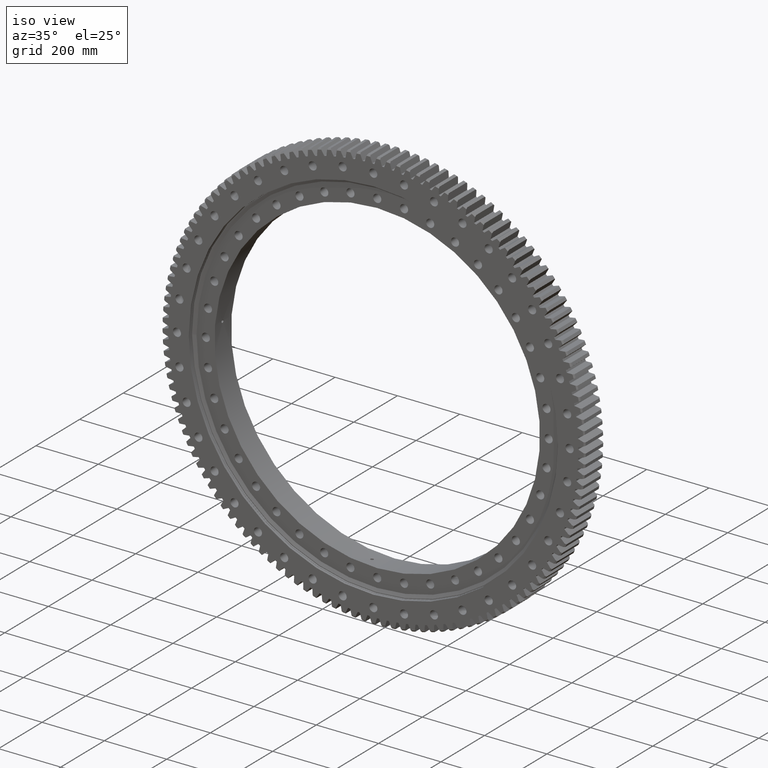
[diagram: clean part render]
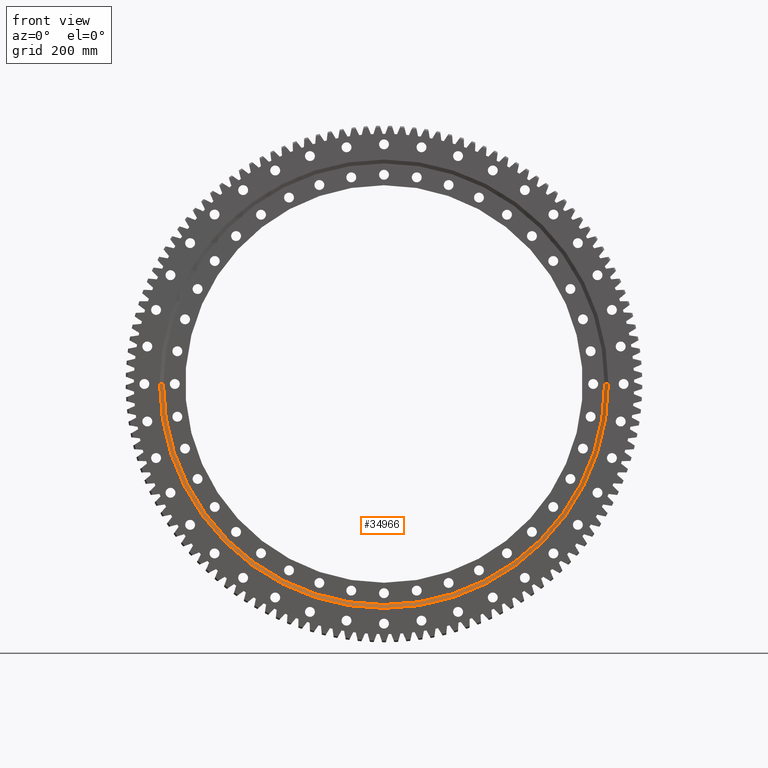
[diagram: tour spotlight — one face highlighted and labeled with its STEP entity id]
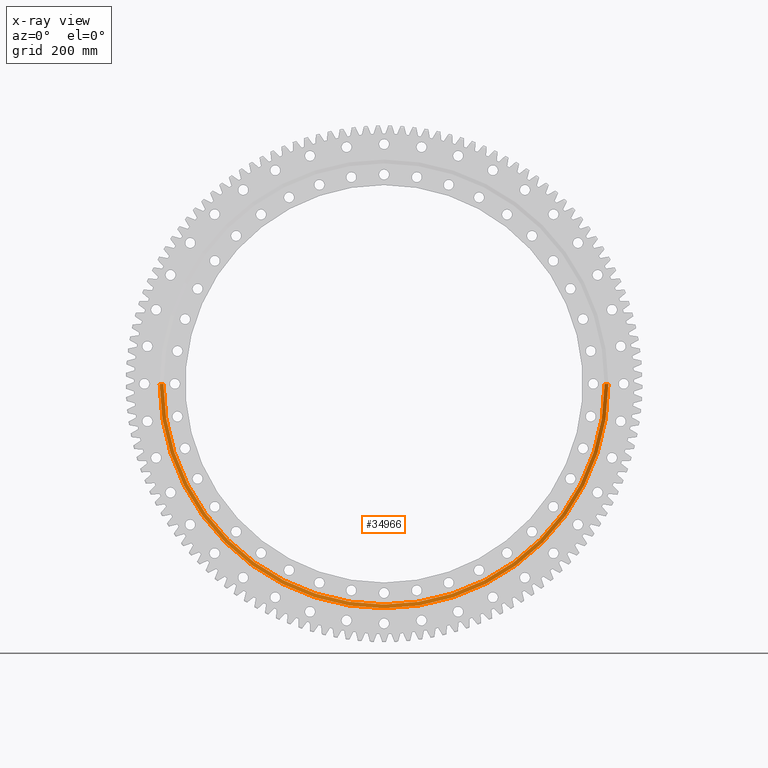
[diagram: x-ray of the same camera — body ghosted, this tour face saturated]
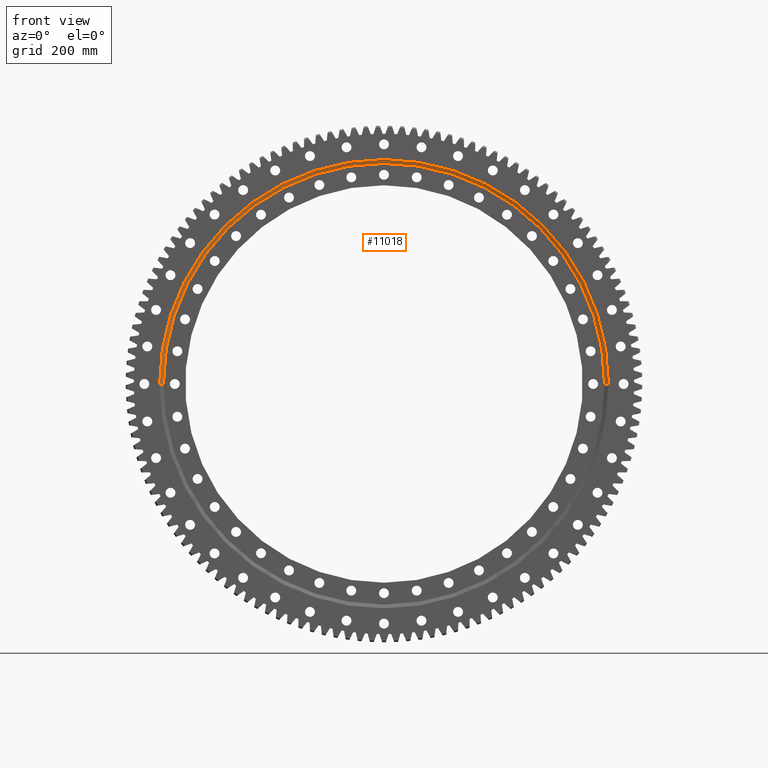
[diagram: tour spotlight — one face highlighted and labeled with its STEP entity id]
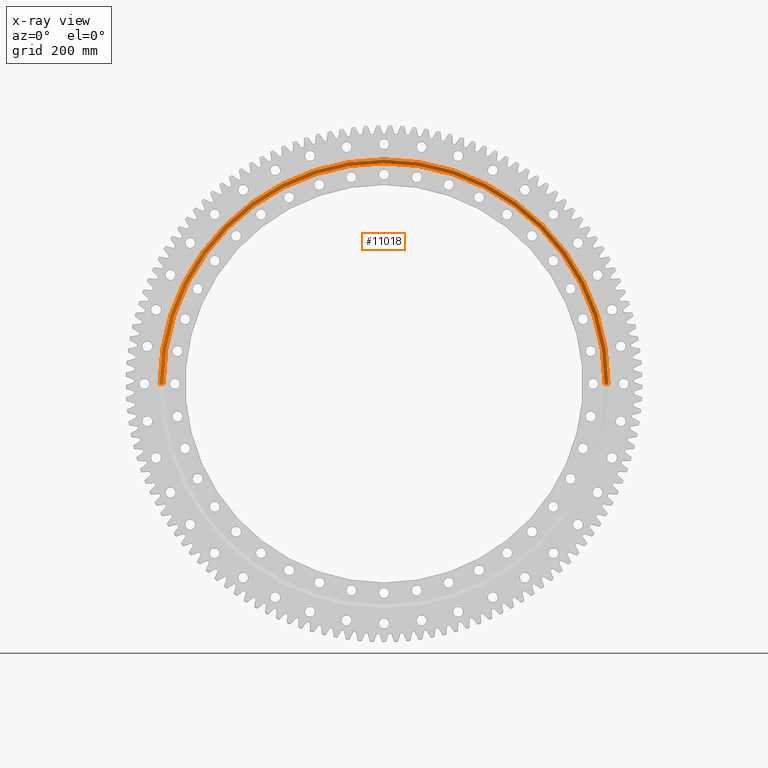
[diagram: x-ray of the same camera — body ghosted, this tour face saturated]
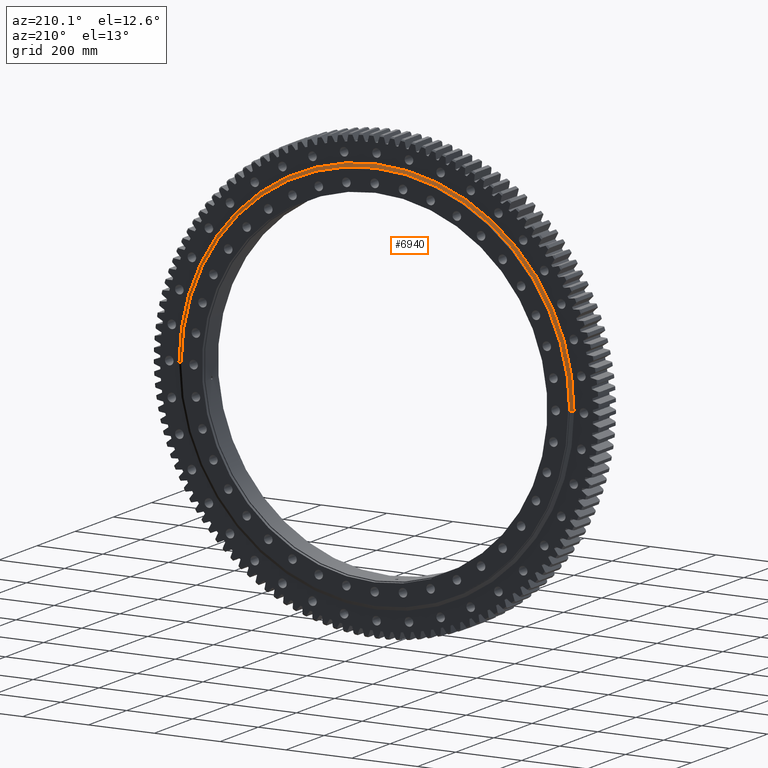
[diagram: tour spotlight — one face highlighted and labeled with its STEP entity id]
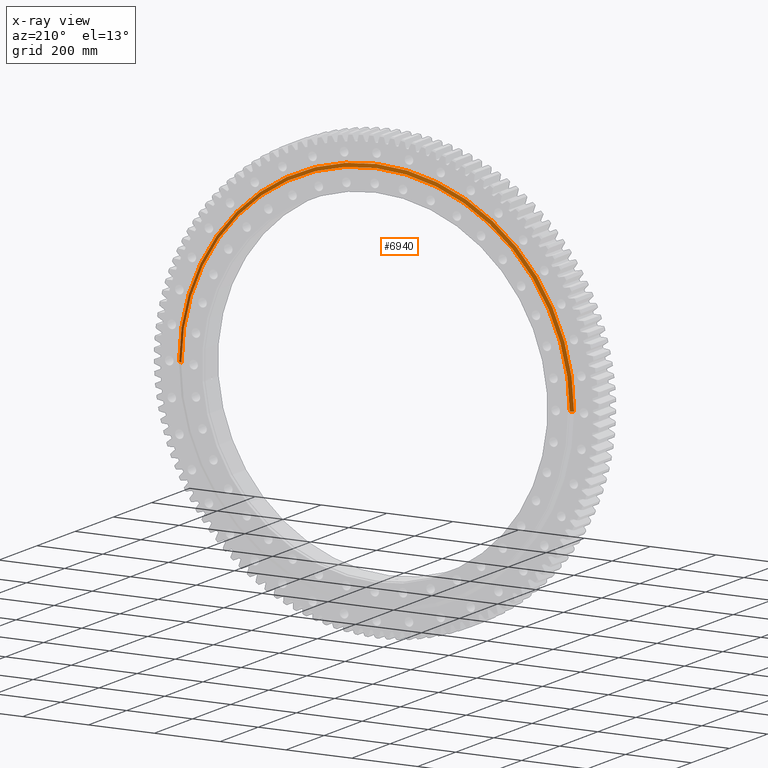
[diagram: x-ray of the same camera — body ghosted, this tour face saturated]
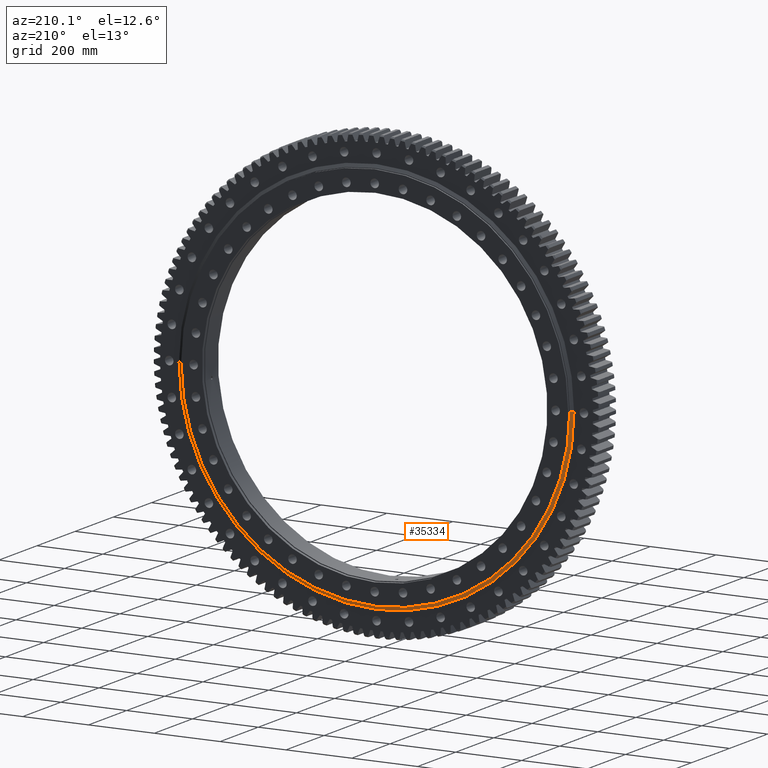
[diagram: tour spotlight — one face highlighted and labeled with its STEP entity id]
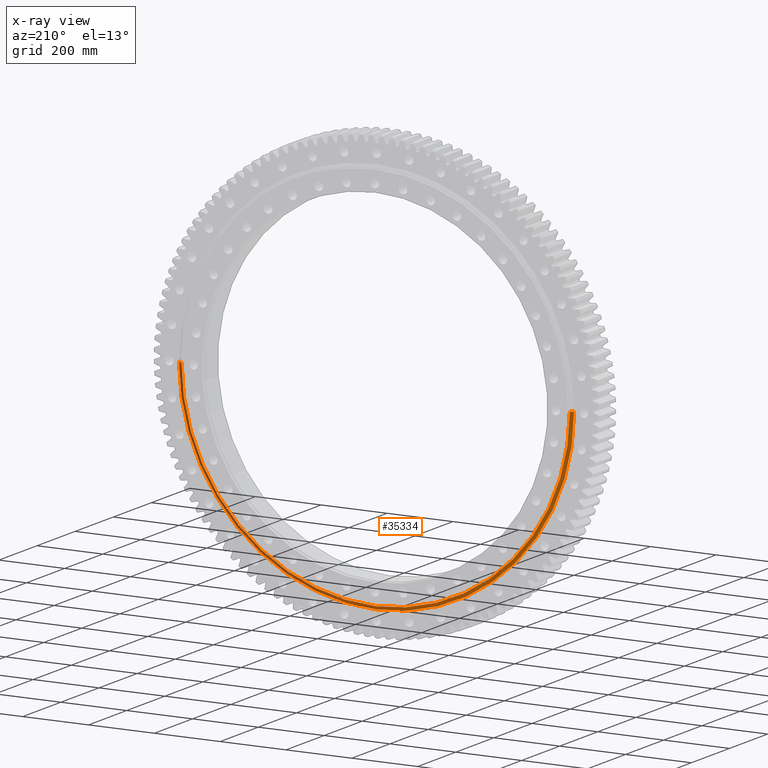
[diagram: x-ray of the same camera — body ghosted, this tour face saturated]
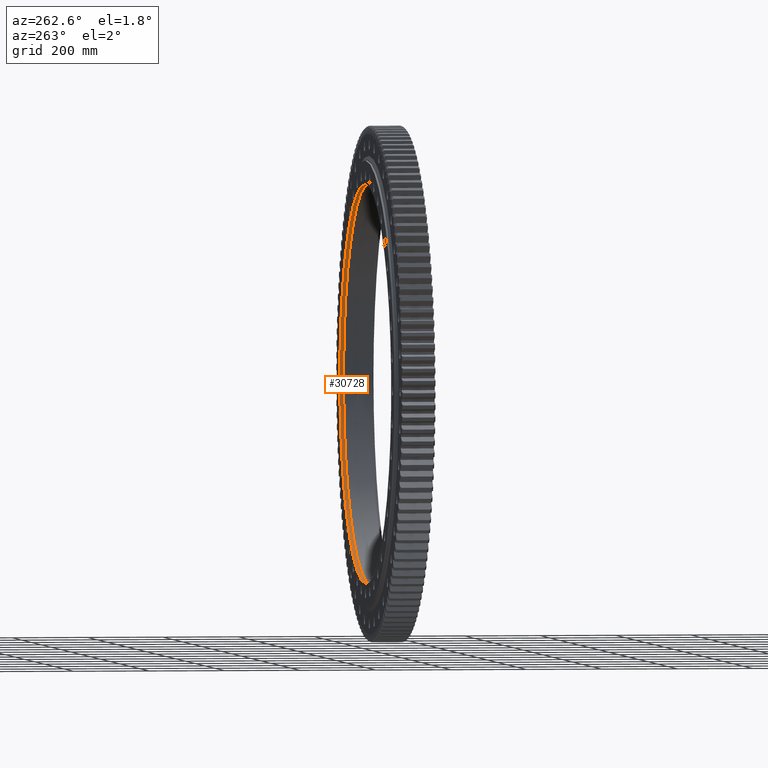
[diagram: tour spotlight — one face highlighted and labeled with its STEP entity id]
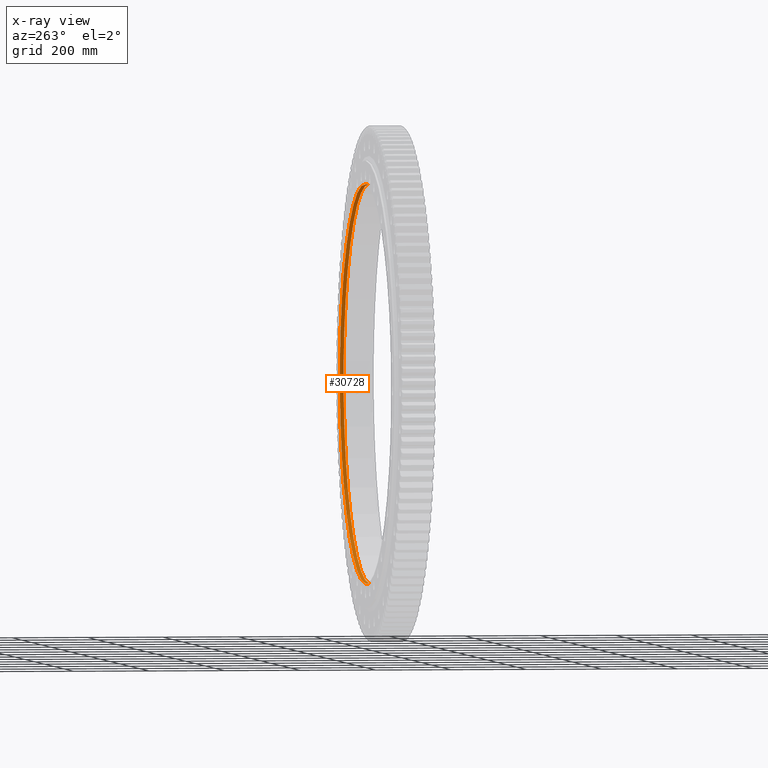
[diagram: x-ray of the same camera — body ghosted, this tour face saturated]
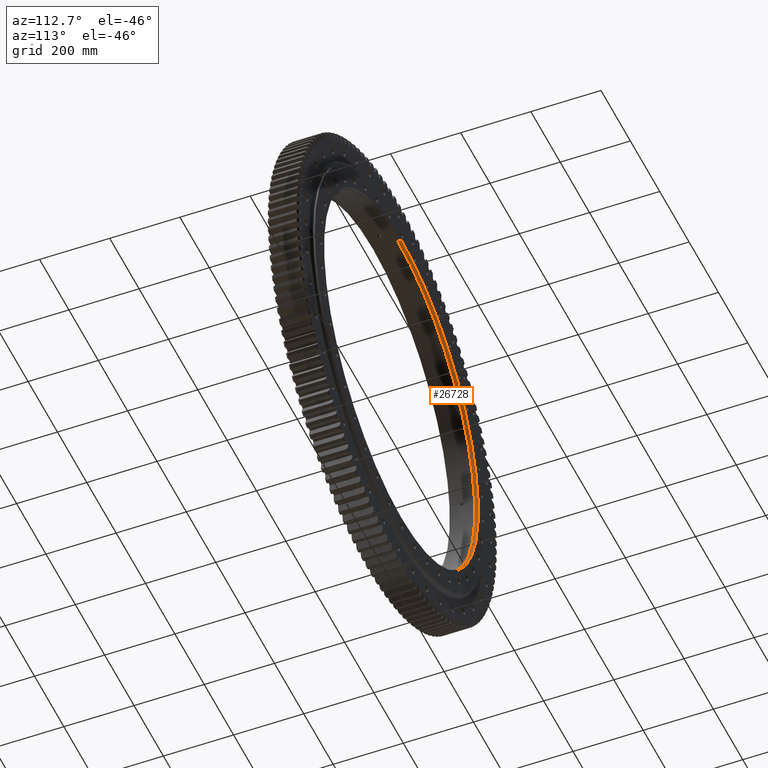
[diagram: tour spotlight — one face highlighted and labeled with its STEP entity id]
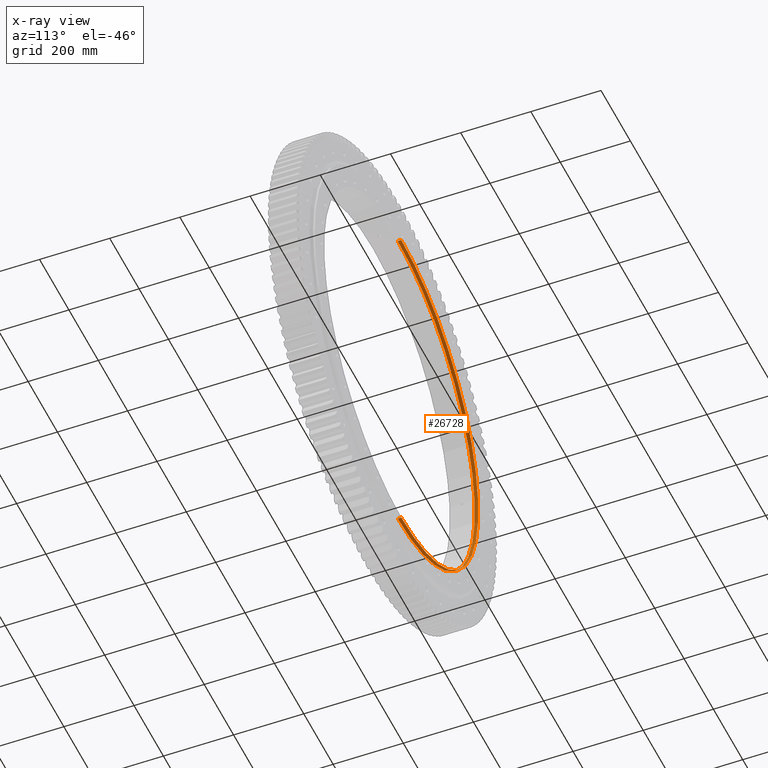
[diagram: x-ray of the same camera — body ghosted, this tour face saturated]
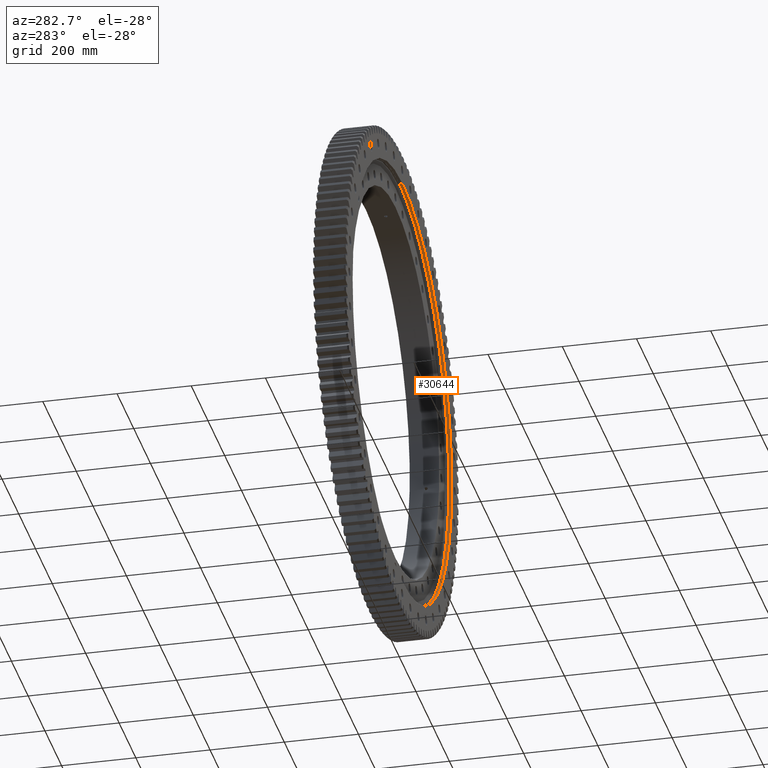
[diagram: tour spotlight — one face highlighted and labeled with its STEP entity id]
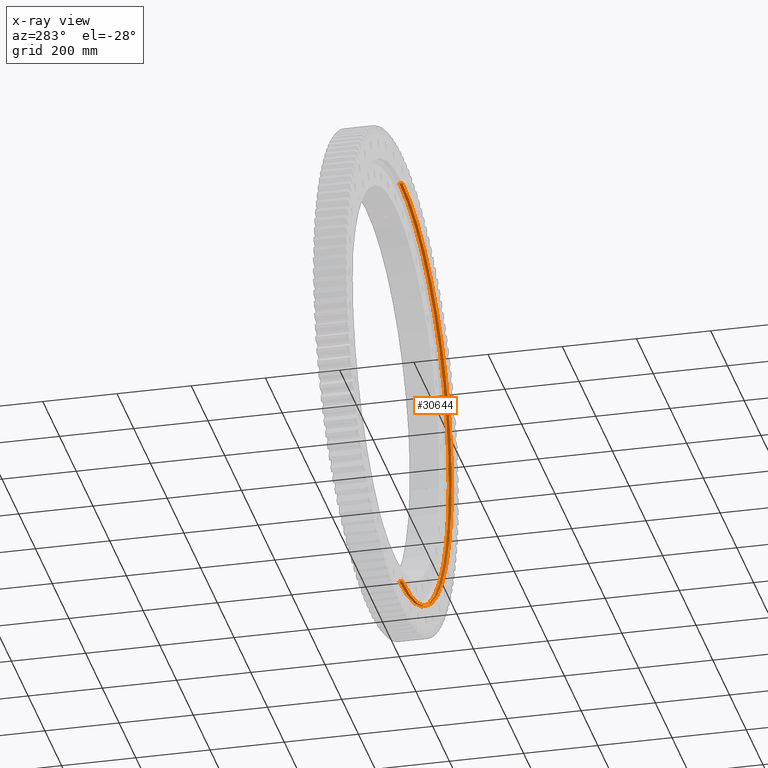
[diagram: x-ray of the same camera — body ghosted, this tour face saturated]
A machine part: a face-by-face anatomy tour. The part has 1028 B-rep faces; the first image is the clean iso view, then the 7 largest visible faces are spotlighted one at a time (largest first), each with its STEP entity span.

Face 1 — front view, entity #34966. An x-ray twin of the same camera follows (body ghosted, this face saturated) — the face is partly hidden behind the body. In plain terms, the highlighted conical surface has half-angle 63.206 deg.
Definition (entity closure, byte-faithful):
#382 = DIRECTION ( 'NONE',  ( 1.786923420260216300E-016, 1.000000000000000000, -0.0000000000000000000 ) ) ;
#995 = DIRECTION ( 'NONE',  ( 1.786923420260216300E-016, 1.000000000000000000, -0.0000000000000000000 ) ) ;
#1030 = DIRECTION ( 'NONE',  ( -1.786923420260216300E-016, -1.000000000000000000, 0.0000000000000000000 ) ) ;
#1370 = CARTESIAN_POINT ( 'NONE',  ( 589.9049999999998600, -40.05000000000010400, 0.0000000000000000000 ) ) ;
#2476 = CARTESIAN_POINT ( 'NONE',  ( -589.9049999999998600, -40.04999999999989800, 7.224252700510193200E-014 ) ) ;
#2570 = ORIENTED_EDGE ( 'NONE', *, *, #6712, .F. ) ;
#3944 = CARTESIAN_POINT ( 'NONE',  ( -1.279447959506678900E-014, -40.05000000000000400, 0.0000000000000000000 ) ) ;
#5396 = ORIENTED_EDGE ( 'NONE', *, *, #33571, .T. ) ;
#6712 = EDGE_CURVE ( 'NONE', #7780, #14472, #29790, .T. ) ;
#7126 = VECTOR ( 'NONE', #21952, 1000.000000000000100 ) ;
#7557 = CARTESIAN_POINT ( 'NONE',  ( 589.9049999999998600, -40.05000000000010400, 0.0000000000000000000 ) ) ;
#7567 = VECTOR ( 'NONE', #16344, 1000.000000000000100 ) ;
#7780 = VERTEX_POINT ( 'NONE', #21346 ) ;
#8118 = ORIENTED_EDGE ( 'NONE', *, *, #10343, .T. ) ;
#8285 = CIRCLE ( 'NONE', #36087, 589.9049999999998600 ) ;
#10343 = EDGE_CURVE ( 'NONE', #7780, #31615, #24017, .T. ) ;
#10402 = EDGE_CURVE ( 'NONE', #14472, #30770, #8285, .T. ) ;
#11810 = DIRECTION ( 'NONE',  ( -1.000000000000000000, 1.764409668651875200E-016, 0.0000000000000000000 ) ) ;
#14022 = CONICAL_SURFACE ( 'NONE', #34491, 589.9049999999998600, 1.103156723031676800 ) ;
#14472 = VERTEX_POINT ( 'NONE', #1370 ) ;
#14551 = LINE ( 'NONE', #2476, #7126 ) ;
#15775 = FACE_OUTER_BOUND ( 'NONE', #29776, .T. ) ;
#16344 = DIRECTION ( 'NONE',  ( 0.8926347946143770000, -0.4507805712802502300, 0.0000000000000000000 ) ) ;
#18631 = CARTESIAN_POINT ( 'NONE',  ( -1.279447959506678900E-014, -40.05000000000000400, 0.0000000000000000000 ) ) ;
#18753 = CARTESIAN_POINT ( 'NONE',  ( -1.189208326783540000E-014, -35.00000000000011400, 0.0000000000000000000 ) ) ;
#21346 = CARTESIAN_POINT ( 'NONE',  ( 579.9049999999998600, -35.00000000000022000, 0.0000000000000000000 ) ) ;
#21952 = DIRECTION ( 'NONE',  ( -0.8926347946143772200, -0.4507805712802499000, 1.093162344032052000E-016 ) ) ;
#23391 = DIRECTION ( 'NONE',  ( 1.000000000000000000, -1.764409668651875200E-016, 0.0000000000000000000 ) ) ;
#24017 = CIRCLE ( 'NONE', #24914, 579.9049999999998600 ) ;
#24914 = AXIS2_PLACEMENT_3D ( 'NONE', #18753, #995, #35171 ) ;
#24971 = ORIENTED_EDGE ( 'NONE', *, *, #10402, .F. ) ;
#25510 = CARTESIAN_POINT ( 'NONE',  ( -579.9049999999998600, -35.00000000000000700, 7.163020360552825600E-014 ) ) ;
#29776 = EDGE_LOOP ( 'NONE', ( #8118, #5396, #24971, #2570 ) ) ;
#29790 = LINE ( 'NONE', #7557, #7567 ) ;
#30770 = VERTEX_POINT ( 'NONE', #33379 ) ;
#31615 = VERTEX_POINT ( 'NONE', #25510 ) ;
#33379 = CARTESIAN_POINT ( 'NONE',  ( -589.9049999999998600, -40.04999999999989800, 7.224252700510193200E-014 ) ) ;
#33571 = EDGE_CURVE ( 'NONE', #31615, #30770, #14551, .T. ) ;
#34491 = AXIS2_PLACEMENT_3D ( 'NONE', #3944, #1030, #23391 ) ;
#34966 = ADVANCED_FACE ( 'NONE', ( #15775 ), #14022, .F. ) ;
#35171 = DIRECTION ( 'NONE',  ( -1.000000000000000000, 1.794835508550684100E-016, 0.0000000000000000000 ) ) ;
#36087 = AXIS2_PLACEMENT_3D ( 'NONE', #18631, #382, #11810 ) ;

Face 2 — front view, entity #11018. An x-ray twin of the same camera follows (body ghosted, this face saturated) — the face is partly hidden behind the body. In plain terms, the highlighted conical surface has half-angle 63.206 deg.
Definition (entity closure, byte-faithful):
#1370 = CARTESIAN_POINT ( 'NONE',  ( 589.9049999999998600, -40.05000000000010400, 0.0000000000000000000 ) ) ;
#1692 = ORIENTED_EDGE ( 'NONE', *, *, #19862, .T. ) ;
#2476 = CARTESIAN_POINT ( 'NONE',  ( -589.9049999999998600, -40.04999999999989800, 7.224252700510193200E-014 ) ) ;
#6712 = EDGE_CURVE ( 'NONE', #7780, #14472, #29790, .T. ) ;
#6962 = DIRECTION ( 'NONE',  ( 1.786923420260216300E-016, 1.000000000000000000, -0.0000000000000000000 ) ) ;
#7126 = VECTOR ( 'NONE', #21952, 1000.000000000000100 ) ;
#7557 = CARTESIAN_POINT ( 'NONE',  ( 589.9049999999998600, -40.05000000000010400, 0.0000000000000000000 ) ) ;
#7567 = VECTOR ( 'NONE', #16344, 1000.000000000000100 ) ;
#7780 = VERTEX_POINT ( 'NONE', #21346 ) ;
#8854 = CARTESIAN_POINT ( 'NONE',  ( -1.189208326783540000E-014, -35.00000000000011400, 0.0000000000000000000 ) ) ;
#9650 = AXIS2_PLACEMENT_3D ( 'NONE', #8854, #28343, #11687 ) ;
#10020 = ORIENTED_EDGE ( 'NONE', *, *, #6712, .T. ) ;
#11018 = ADVANCED_FACE ( 'NONE', ( #35270 ), #18723, .F. ) ;
#11687 = DIRECTION ( 'NONE',  ( -1.000000000000000000, 1.794835508550684100E-016, 0.0000000000000000000 ) ) ;
#12895 = ORIENTED_EDGE ( 'NONE', *, *, #33571, .F. ) ;
#14472 = VERTEX_POINT ( 'NONE', #1370 ) ;
#14502 = DIRECTION ( 'NONE',  ( -1.786923420260216300E-016, -1.000000000000000000, 0.0000000000000000000 ) ) ;
#14551 = LINE ( 'NONE', #2476, #7126 ) ;
#15375 = AXIS2_PLACEMENT_3D ( 'NONE', #17305, #14502, #31904 ) ;
#16344 = DIRECTION ( 'NONE',  ( 0.8926347946143770000, -0.4507805712802502300, 0.0000000000000000000 ) ) ;
#17305 = CARTESIAN_POINT ( 'NONE',  ( -1.279447959506678900E-014, -40.05000000000000400, 0.0000000000000000000 ) ) ;
#18723 = CONICAL_SURFACE ( 'NONE', #15375, 589.9049999999998600, 1.103156723031676800 ) ;
#19862 = EDGE_CURVE ( 'NONE', #31615, #7780, #28851, .T. ) ;
#21346 = CARTESIAN_POINT ( 'NONE',  ( 579.9049999999998600, -35.00000000000022000, 0.0000000000000000000 ) ) ;
#21952 = DIRECTION ( 'NONE',  ( -0.8926347946143772200, -0.4507805712802499000, 1.093162344032052000E-016 ) ) ;
#23660 = CARTESIAN_POINT ( 'NONE',  ( -1.279447959506678900E-014, -40.05000000000000400, 0.0000000000000000000 ) ) ;
#25510 = CARTESIAN_POINT ( 'NONE',  ( -579.9049999999998600, -35.00000000000000700, 7.163020360552825600E-014 ) ) ;
#26339 = EDGE_CURVE ( 'NONE', #30770, #14472, #28997, .T. ) ;
#26439 = DIRECTION ( 'NONE',  ( -1.000000000000000000, 1.764409668651875200E-016, 0.0000000000000000000 ) ) ;
#28343 = DIRECTION ( 'NONE',  ( 1.786923420260216300E-016, 1.000000000000000000, -0.0000000000000000000 ) ) ;
#28851 = CIRCLE ( 'NONE', #9650, 579.9049999999998600 ) ;
#28997 = CIRCLE ( 'NONE', #31713, 589.9049999999998600 ) ;
#29790 = LINE ( 'NONE', #7557, #7567 ) ;
#30770 = VERTEX_POINT ( 'NONE', #33379 ) ;
#31615 = VERTEX_POINT ( 'NONE', #25510 ) ;
#31713 = AXIS2_PLACEMENT_3D ( 'NONE', #23660, #6962, #26439 ) ;
#31904 = DIRECTION ( 'NONE',  ( 1.000000000000000000, -1.764409668651875200E-016, 0.0000000000000000000 ) ) ;
#31957 = EDGE_LOOP ( 'NONE', ( #12895, #1692, #10020, #34159 ) ) ;
#33379 = CARTESIAN_POINT ( 'NONE',  ( -589.9049999999998600, -40.04999999999989800, 7.224252700510193200E-014 ) ) ;
#33571 = EDGE_CURVE ( 'NONE', #31615, #30770, #14551, .T. ) ;
#34159 = ORIENTED_EDGE ( 'NONE', *, *, #26339, .F. ) ;
#35270 = FACE_OUTER_BOUND ( 'NONE', #31957, .T. ) ;

Face 3 — auxiliary view, entity #6940. An x-ray twin of the same camera follows (body ghosted, this face saturated) — the face is partly hidden behind the body. In plain terms, the highlighted conical surface has half-angle 63.206 deg.
Definition (entity closure, byte-faithful):
#173 = CARTESIAN_POINT ( 'NONE',  ( -600.0950000000000300, 35.00000000000000000, 7.349044209343308400E-014 ) ) ;
#523 = AXIS2_PLACEMENT_3D ( 'NONE', #19850, #3185, #22679 ) ;
#2167 = ORIENTED_EDGE ( 'NONE', *, *, #26765, .T. ) ;
#3065 = VECTOR ( 'NONE', #21797, 999.9999999999998900 ) ;
#3185 = DIRECTION ( 'NONE',  ( 1.836909530733565900E-016, 1.000000000000000000, -0.0000000000000000000 ) ) ;
#4086 = CARTESIAN_POINT ( 'NONE',  ( 600.0950000000000300, 34.99999999999978000, 0.0000000000000000000 ) ) ;
#4179 = VERTEX_POINT ( 'NONE', #17308 ) ;
#5116 = CARTESIAN_POINT ( 'NONE',  ( 600.0950000000000300, 34.99999999999978000, 0.0000000000000000000 ) ) ;
#6269 = DIRECTION ( 'NONE',  ( -1.000000000000000000, 1.881430997763337200E-016, 0.0000000000000000000 ) ) ;
#6940 = ADVANCED_FACE ( 'NONE', ( #22840 ), #21959, .T. ) ;
#7833 = AXIS2_PLACEMENT_3D ( 'NONE', #7916, #16184, #6269 ) ;
#7916 = CARTESIAN_POINT ( 'NONE',  ( 1.561262176634956900E-015, 40.04999999999999000, 0.0000000000000000000 ) ) ;
#7988 = VERTEX_POINT ( 'NONE', #4086 ) ;
#8784 = EDGE_CURVE ( 'NONE', #13722, #4179, #13193, .T. ) ;
#8838 = EDGE_CURVE ( 'NONE', #13722, #28234, #17110, .T. ) ;
#10240 = CIRCLE ( 'NONE', #523, 600.0950000000000300 ) ;
#13189 = DIRECTION ( 'NONE',  ( -1.836909530733565900E-016, -1.000000000000000000, 0.0000000000000000000 ) ) ;
#13193 = CIRCLE ( 'NONE', #7833, 590.0950000000000300 ) ;
#13722 = VERTEX_POINT ( 'NONE', #33516 ) ;
#14058 = AXIS2_PLACEMENT_3D ( 'NONE', #23190, #13189, #33338 ) ;
#15511 = ORIENTED_EDGE ( 'NONE', *, *, #8784, .F. ) ;
#16184 = DIRECTION ( 'NONE',  ( 1.836909530733565900E-016, 1.000000000000000000, -0.0000000000000000000 ) ) ;
#17110 = LINE ( 'NONE', #35423, #25384 ) ;
#17308 = CARTESIAN_POINT ( 'NONE',  ( 590.0950000000000300, 40.04999999999987600, 0.0000000000000000000 ) ) ;
#19850 = CARTESIAN_POINT ( 'NONE',  ( 6.336228636144881000E-016, 34.99999999999989300, 0.0000000000000000000 ) ) ;
#21797 = DIRECTION ( 'NONE',  ( 0.8926347946143696800, -0.4507805712802651600, 0.0000000000000000000 ) ) ;
#21959 = CONICAL_SURFACE ( 'NONE', #14058, 600.0950000000000300, 1.103156723031660100 ) ;
#22522 = EDGE_LOOP ( 'NONE', ( #15511, #23426, #2167, #25975 ) ) ;
#22679 = DIRECTION ( 'NONE',  ( -1.000000000000000000, 1.850078778568654000E-016, 0.0000000000000000000 ) ) ;
#22840 = FACE_OUTER_BOUND ( 'NONE', #22522, .T. ) ;
#23190 = CARTESIAN_POINT ( 'NONE',  ( 6.336228636144881000E-016, 34.99999999999989300, 0.0000000000000000000 ) ) ;
#23426 = ORIENTED_EDGE ( 'NONE', *, *, #8838, .T. ) ;
#24405 = LINE ( 'NONE', #5116, #3065 ) ;
#25384 = VECTOR ( 'NONE', #28474, 999.9999999999998900 ) ;
#25975 = ORIENTED_EDGE ( 'NONE', *, *, #28690, .F. ) ;
#26765 = EDGE_CURVE ( 'NONE', #28234, #7988, #10240, .T. ) ;
#28234 = VERTEX_POINT ( 'NONE', #173 ) ;
#28474 = DIRECTION ( 'NONE',  ( -0.8926347946143699000, -0.4507805712802648300, 1.093162344032043000E-016 ) ) ;
#28690 = EDGE_CURVE ( 'NONE', #4179, #7988, #24405, .T. ) ;
#33338 = DIRECTION ( 'NONE',  ( 1.000000000000000000, -1.850078778568654000E-016, 0.0000000000000000000 ) ) ;
#33516 = CARTESIAN_POINT ( 'NONE',  ( -590.0950000000000300, 40.05000000000009700, 7.287811869385940800E-014 ) ) ;
#35423 = CARTESIAN_POINT ( 'NONE',  ( -600.0950000000000300, 35.00000000000000000, 7.349044209343309600E-014 ) ) ;

Face 4 — auxiliary view, entity #35334. An x-ray twin of the same camera follows (body ghosted, this face saturated) — the face is partly hidden behind the body. In plain terms, the highlighted conical surface has half-angle 63.206 deg.
Definition (entity closure, byte-faithful):
#173 = CARTESIAN_POINT ( 'NONE',  ( -600.0950000000000300, 35.00000000000000000, 7.349044209343308400E-014 ) ) ;
#3065 = VECTOR ( 'NONE', #21797, 999.9999999999998900 ) ;
#4086 = CARTESIAN_POINT ( 'NONE',  ( 600.0950000000000300, 34.99999999999978000, 0.0000000000000000000 ) ) ;
#4179 = VERTEX_POINT ( 'NONE', #17308 ) ;
#5116 = CARTESIAN_POINT ( 'NONE',  ( 600.0950000000000300, 34.99999999999978000, 0.0000000000000000000 ) ) ;
#5939 = CARTESIAN_POINT ( 'NONE',  ( 1.561262176634956900E-015, 40.04999999999999000, 0.0000000000000000000 ) ) ;
#6170 = FACE_OUTER_BOUND ( 'NONE', #18463, .T. ) ;
#6403 = AXIS2_PLACEMENT_3D ( 'NONE', #5939, #25422, #8734 ) ;
#7988 = VERTEX_POINT ( 'NONE', #4086 ) ;
#8734 = DIRECTION ( 'NONE',  ( -1.000000000000000000, 1.881430997763337200E-016, 0.0000000000000000000 ) ) ;
#8838 = EDGE_CURVE ( 'NONE', #13722, #28234, #17110, .T. ) ;
#10345 = CIRCLE ( 'NONE', #6403, 590.0950000000000300 ) ;
#13063 = DIRECTION ( 'NONE',  ( -1.000000000000000000, 1.850078778568654000E-016, 0.0000000000000000000 ) ) ;
#13722 = VERTEX_POINT ( 'NONE', #33516 ) ;
#14222 = AXIS2_PLACEMENT_3D ( 'NONE', #29846, #21235, #13063 ) ;
#14917 = ORIENTED_EDGE ( 'NONE', *, *, #30253, .F. ) ;
#16614 = EDGE_CURVE ( 'NONE', #7988, #28234, #20777, .T. ) ;
#17110 = LINE ( 'NONE', #35423, #25384 ) ;
#17308 = CARTESIAN_POINT ( 'NONE',  ( 590.0950000000000300, 40.04999999999987600, 0.0000000000000000000 ) ) ;
#18184 = AXIS2_PLACEMENT_3D ( 'NONE', #27970, #30629, #24831 ) ;
#18463 = EDGE_LOOP ( 'NONE', ( #22593, #14917, #21265, #20018 ) ) ;
#20018 = ORIENTED_EDGE ( 'NONE', *, *, #16614, .T. ) ;
#20777 = CIRCLE ( 'NONE', #14222, 600.0950000000000300 ) ;
#21235 = DIRECTION ( 'NONE',  ( 1.836909530733565900E-016, 1.000000000000000000, -0.0000000000000000000 ) ) ;
#21265 = ORIENTED_EDGE ( 'NONE', *, *, #28690, .T. ) ;
#21797 = DIRECTION ( 'NONE',  ( 0.8926347946143696800, -0.4507805712802651600, 0.0000000000000000000 ) ) ;
#22593 = ORIENTED_EDGE ( 'NONE', *, *, #8838, .F. ) ;
#24405 = LINE ( 'NONE', #5116, #3065 ) ;
#24831 = DIRECTION ( 'NONE',  ( 1.000000000000000000, -1.850078778568654000E-016, 0.0000000000000000000 ) ) ;
#25384 = VECTOR ( 'NONE', #28474, 999.9999999999998900 ) ;
#25422 = DIRECTION ( 'NONE',  ( 1.836909530733565900E-016, 1.000000000000000000, -0.0000000000000000000 ) ) ;
#26647 = CONICAL_SURFACE ( 'NONE', #18184, 600.0950000000000300, 1.103156723031660100 ) ;
#27970 = CARTESIAN_POINT ( 'NONE',  ( 6.336228636144881000E-016, 34.99999999999989300, 0.0000000000000000000 ) ) ;
#28234 = VERTEX_POINT ( 'NONE', #173 ) ;
#28474 = DIRECTION ( 'NONE',  ( -0.8926347946143699000, -0.4507805712802648300, 1.093162344032043000E-016 ) ) ;
#28690 = EDGE_CURVE ( 'NONE', #4179, #7988, #24405, .T. ) ;
#29846 = CARTESIAN_POINT ( 'NONE',  ( 6.336228636144881000E-016, 34.99999999999989300, 0.0000000000000000000 ) ) ;
#30253 = EDGE_CURVE ( 'NONE', #4179, #13722, #10345, .T. ) ;
#30629 = DIRECTION ( 'NONE',  ( -1.836909530733565900E-016, -1.000000000000000000, 0.0000000000000000000 ) ) ;
#33516 = CARTESIAN_POINT ( 'NONE',  ( -590.0950000000000300, 40.05000000000009700, 7.287811869385940800E-014 ) ) ;
#35334 = ADVANCED_FACE ( 'NONE', ( #6170 ), #26647, .T. ) ;
#35423 = CARTESIAN_POINT ( 'NONE',  ( -600.0950000000000300, 35.00000000000000000, 7.349044209343309600E-014 ) ) ;

Face 5 — auxiliary view, entity #30728. An x-ray twin of the same camera follows (body ghosted, this face saturated) — the face is partly hidden behind the body. In plain terms, the highlighted cylindrical surface (partial cylindrical patch) has radius 525 mm, axis along (-0, 1, -0).
Definition (entity closure, byte-faithful):
#583 = CARTESIAN_POINT ( 'NONE',  ( 0.0000000000000000000, 34.99999999999993600, 524.9999999999998900 ) ) ;
#719 = EDGE_CURVE ( 'NONE', #31636, #15273, #17983, .T. ) ;
#838 = EDGE_LOOP ( 'NONE', ( #20172, #31170, #25634, #34827 ) ) ;
#2311 = VECTOR ( 'NONE', #24975, 1000.000000000000000 ) ;
#4682 = FACE_OUTER_BOUND ( 'NONE', #838, .T. ) ;
#5451 = CIRCLE ( 'NONE', #17873, 524.9999999999998900 ) ;
#10895 = CARTESIAN_POINT ( 'NONE',  ( 0.0000000000000000000, 44.99999999999994300, 0.0000000000000000000 ) ) ;
#11501 = VECTOR ( 'NONE', #20522, 1000.000000000000000 ) ;
#12137 = CARTESIAN_POINT ( 'NONE',  ( 6.429395695523604100E-014, 70.62343277129268400, -524.9999999999998900 ) ) ;
#13293 = CARTESIAN_POINT ( 'NONE',  ( 0.0000000000000000000, 44.99999999999995700, 524.9999999999998900 ) ) ;
#13676 = DIRECTION ( 'NONE',  ( 0.0000000000000000000, -2.643388153869420800E-017, -1.000000000000000000 ) ) ;
#13693 = DIRECTION ( 'NONE',  ( -0.0000000000000000000, 1.000000000000000000, -0.0000000000000000000 ) ) ;
#14344 = CARTESIAN_POINT ( 'NONE',  ( 6.429395695523604100E-014, 34.99999999999993600, -524.9999999999998900 ) ) ;
#14918 = CARTESIAN_POINT ( 'NONE',  ( 0.0000000000000000000, 34.99999999999993600, 0.0000000000000000000 ) ) ;
#15273 = VERTEX_POINT ( 'NONE', #13293 ) ;
#16518 = CARTESIAN_POINT ( 'NONE',  ( 0.0000000000000000000, 70.62343277129268400, 0.0000000000000000000 ) ) ;
#17212 = CARTESIAN_POINT ( 'NONE',  ( 6.429395695523604100E-014, 44.99999999999992900, -524.9999999999998900 ) ) ;
#17703 = DIRECTION ( 'NONE',  ( 0.0000000000000000000, 0.0000000000000000000, 1.000000000000000000 ) ) ;
#17722 = CYLINDRICAL_SURFACE ( 'NONE', #33658, 524.9999999999998900 ) ;
#17873 = AXIS2_PLACEMENT_3D ( 'NONE', #14918, #34377, #17703 ) ;
#17983 = LINE ( 'NONE', #21793, #2311 ) ;
#18864 = EDGE_CURVE ( 'NONE', #27259, #22983, #18881, .T. ) ;
#18881 = LINE ( 'NONE', #12137, #11501 ) ;
#19285 = DIRECTION ( 'NONE',  ( 0.0000000000000000000, 0.0000000000000000000, 1.000000000000000000 ) ) ;
#20172 = ORIENTED_EDGE ( 'NONE', *, *, #18864, .F. ) ;
#20522 = DIRECTION ( 'NONE',  ( -0.0000000000000000000, 1.000000000000000000, -0.0000000000000000000 ) ) ;
#21793 = CARTESIAN_POINT ( 'NONE',  ( 0.0000000000000000000, 70.62343277129268400, 524.9999999999998900 ) ) ;
#22983 = VERTEX_POINT ( 'NONE', #17212 ) ;
#24975 = DIRECTION ( 'NONE',  ( -0.0000000000000000000, 1.000000000000000000, -0.0000000000000000000 ) ) ;
#25634 = ORIENTED_EDGE ( 'NONE', *, *, #719, .T. ) ;
#26104 = EDGE_CURVE ( 'NONE', #22983, #15273, #35097, .T. ) ;
#27259 = VERTEX_POINT ( 'NONE', #14344 ) ;
#28704 = AXIS2_PLACEMENT_3D ( 'NONE', #10895, #30334, #13676 ) ;
#30334 = DIRECTION ( 'NONE',  ( 0.0000000000000000000, -1.000000000000000000, 2.727064569436389700E-017 ) ) ;
#30728 = ADVANCED_FACE ( 'NONE', ( #4682 ), #17722, .F. ) ;
#31170 = ORIENTED_EDGE ( 'NONE', *, *, #31708, .F. ) ;
#31636 = VERTEX_POINT ( 'NONE', #583 ) ;
#31708 = EDGE_CURVE ( 'NONE', #31636, #27259, #5451, .T. ) ;
#33658 = AXIS2_PLACEMENT_3D ( 'NONE', #16518, #13693, #19285 ) ;
#34377 = DIRECTION ( 'NONE',  ( -0.0000000000000000000, 1.000000000000000000, -0.0000000000000000000 ) ) ;
#34827 = ORIENTED_EDGE ( 'NONE', *, *, #26104, .F. ) ;
#35097 = CIRCLE ( 'NONE', #28704, 524.9999999999998900 ) ;

Face 6 — auxiliary view, entity #26728. An x-ray twin of the same camera follows (body ghosted, this face saturated) — the face is partly hidden behind the body. In plain terms, the highlighted cylindrical surface (partial cylindrical patch) has radius 525 mm, axis along (-0, 1, -0).
Definition (entity closure, byte-faithful):
#583 = CARTESIAN_POINT ( 'NONE',  ( 0.0000000000000000000, 34.99999999999993600, 524.9999999999998900 ) ) ;
#665 = EDGE_CURVE ( 'NONE', #15273, #22983, #27123, .T. ) ;
#719 = EDGE_CURVE ( 'NONE', #31636, #15273, #17983, .T. ) ;
#2311 = VECTOR ( 'NONE', #24975, 1000.000000000000000 ) ;
#2834 = FACE_OUTER_BOUND ( 'NONE', #29110, .T. ) ;
#3437 = ORIENTED_EDGE ( 'NONE', *, *, #719, .F. ) ;
#7935 = AXIS2_PLACEMENT_3D ( 'NONE', #14123, #22415, #16949 ) ;
#8886 = ORIENTED_EDGE ( 'NONE', *, *, #18814, .F. ) ;
#11501 = VECTOR ( 'NONE', #20522, 1000.000000000000000 ) ;
#12137 = CARTESIAN_POINT ( 'NONE',  ( 6.429395695523604100E-014, 70.62343277129268400, -524.9999999999998900 ) ) ;
#12999 = ORIENTED_EDGE ( 'NONE', *, *, #665, .F. ) ;
#13293 = CARTESIAN_POINT ( 'NONE',  ( 0.0000000000000000000, 44.99999999999995700, 524.9999999999998900 ) ) ;
#14123 = CARTESIAN_POINT ( 'NONE',  ( 0.0000000000000000000, 70.62343277129268400, 0.0000000000000000000 ) ) ;
#14344 = CARTESIAN_POINT ( 'NONE',  ( 6.429395695523604100E-014, 34.99999999999993600, -524.9999999999998900 ) ) ;
#14685 = CARTESIAN_POINT ( 'NONE',  ( 0.0000000000000000000, 34.99999999999993600, 0.0000000000000000000 ) ) ;
#15273 = VERTEX_POINT ( 'NONE', #13293 ) ;
#16949 = DIRECTION ( 'NONE',  ( 0.0000000000000000000, 0.0000000000000000000, 1.000000000000000000 ) ) ;
#17212 = CARTESIAN_POINT ( 'NONE',  ( 6.429395695523604100E-014, 44.99999999999992900, -524.9999999999998900 ) ) ;
#17480 = DIRECTION ( 'NONE',  ( 0.0000000000000000000, 0.0000000000000000000, 1.000000000000000000 ) ) ;
#17983 = LINE ( 'NONE', #21793, #2311 ) ;
#18814 = EDGE_CURVE ( 'NONE', #27259, #31636, #34548, .T. ) ;
#18864 = EDGE_CURVE ( 'NONE', #27259, #22983, #18881, .T. ) ;
#18881 = LINE ( 'NONE', #12137, #11501 ) ;
#19702 = DIRECTION ( 'NONE',  ( 0.0000000000000000000, -1.000000000000000000, 2.727064569436389700E-017 ) ) ;
#19874 = AXIS2_PLACEMENT_3D ( 'NONE', #14685, #34119, #17480 ) ;
#20522 = DIRECTION ( 'NONE',  ( -0.0000000000000000000, 1.000000000000000000, -0.0000000000000000000 ) ) ;
#20988 = CARTESIAN_POINT ( 'NONE',  ( 0.0000000000000000000, 44.99999999999994300, 0.0000000000000000000 ) ) ;
#21793 = CARTESIAN_POINT ( 'NONE',  ( 0.0000000000000000000, 70.62343277129268400, 524.9999999999998900 ) ) ;
#22415 = DIRECTION ( 'NONE',  ( -0.0000000000000000000, 1.000000000000000000, -0.0000000000000000000 ) ) ;
#22686 = DIRECTION ( 'NONE',  ( 0.0000000000000000000, -2.643388153869420800E-017, -1.000000000000000000 ) ) ;
#22983 = VERTEX_POINT ( 'NONE', #17212 ) ;
#23083 = ORIENTED_EDGE ( 'NONE', *, *, #18864, .T. ) ;
#23897 = AXIS2_PLACEMENT_3D ( 'NONE', #20988, #19702, #22686 ) ;
#24975 = DIRECTION ( 'NONE',  ( -0.0000000000000000000, 1.000000000000000000, -0.0000000000000000000 ) ) ;
#26728 = ADVANCED_FACE ( 'NONE', ( #2834 ), #31568, .F. ) ;
#27123 = CIRCLE ( 'NONE', #23897, 524.9999999999998900 ) ;
#27259 = VERTEX_POINT ( 'NONE', #14344 ) ;
#29110 = EDGE_LOOP ( 'NONE', ( #8886, #23083, #12999, #3437 ) ) ;
#31568 = CYLINDRICAL_SURFACE ( 'NONE', #7935, 524.9999999999998900 ) ;
#31636 = VERTEX_POINT ( 'NONE', #583 ) ;
#34119 = DIRECTION ( 'NONE',  ( -0.0000000000000000000, 1.000000000000000000, -0.0000000000000000000 ) ) ;
#34548 = CIRCLE ( 'NONE', #19874, 524.9999999999998900 ) ;

Face 7 — auxiliary view, entity #30644. An x-ray twin of the same camera follows (body ghosted, this face saturated) — the face is partly hidden behind the body. In plain terms, the highlighted cylindrical surface (partial cylindrical patch) has radius 592.5 mm, axis along (-0, 1, 0).
Definition (entity closure, byte-faithful):
#10 = CIRCLE ( 'NONE', #22336, 592.5000000000000000 ) ;
#1009 = DIRECTION ( 'NONE',  ( -0.0000000000000000000, 1.000000000000000000, 1.217226525267864100E-016 ) ) ;
#2280 = DIRECTION ( 'NONE',  ( -0.0000000000000000000, 1.000000000000000000, 1.217226525267864100E-016 ) ) ;
#2295 = CARTESIAN_POINT ( 'NONE',  ( 7.256032284948068900E-014, 44.78479553668727700, -592.5000000000000000 ) ) ;
#2944 = EDGE_CURVE ( 'NONE', #24604, #4354, #19633, .T. ) ;
#3730 = EDGE_CURVE ( 'NONE', #19195, #6276, #10, .T. ) ;
#4071 = DIRECTION ( 'NONE',  ( 0.0000000000000000000, -1.171121333992781200E-016, 1.000000000000000000 ) ) ;
#4354 = VERTEX_POINT ( 'NONE', #35857 ) ;
#6193 = CARTESIAN_POINT ( 'NONE',  ( 0.0000000000000000000, 44.78479553668714200, 592.5000000000000000 ) ) ;
#6276 = VERTEX_POINT ( 'NONE', #10214 ) ;
#6676 = ORIENTED_EDGE ( 'NONE', *, *, #2944, .T. ) ;
#7032 = CARTESIAN_POINT ( 'NONE',  ( 0.0000000000000000000, -45.00000000000004300, -4.796684817046259800E-015 ) ) ;
#8408 = CARTESIAN_POINT ( 'NONE',  ( 0.0000000000000000000, -53.00000000000005000, 592.5000000000000000 ) ) ;
#10024 = EDGE_LOOP ( 'NONE', ( #15668, #35083, #29722, #6676 ) ) ;
#10214 = CARTESIAN_POINT ( 'NONE',  ( 7.256032284948068900E-014, -53.00000000000005000, -592.5000000000000000 ) ) ;
#12094 = DIRECTION ( 'NONE',  ( -0.0000000000000000000, 1.000000000000000000, -0.0000000000000000000 ) ) ;
#12534 = VECTOR ( 'NONE', #32912, 1000.000000000000000 ) ;
#12945 = CYLINDRICAL_SURFACE ( 'NONE', #24385, 592.5000000000000000 ) ;
#13339 = EDGE_CURVE ( 'NONE', #19195, #24604, #22497, .T. ) ;
#15084 = VECTOR ( 'NONE', #1009, 1000.000000000000000 ) ;
#15405 = CARTESIAN_POINT ( 'NONE',  ( 0.0000000000000000000, -53.00000000000005000, -5.770466037260551900E-015 ) ) ;
#15668 = ORIENTED_EDGE ( 'NONE', *, *, #25487, .F. ) ;
#16605 = CARTESIAN_POINT ( 'NONE',  ( 0.0000000000000000000, -45.00000000000010700, 592.5000000000000000 ) ) ;
#17443 = DIRECTION ( 'NONE',  ( 0.0000000000000000000, 0.0000000000000000000, 1.000000000000000000 ) ) ;
#18923 = CARTESIAN_POINT ( 'NONE',  ( 0.0000000000000000000, 44.78479553668721300, 6.132158652254485700E-015 ) ) ;
#19195 = VERTEX_POINT ( 'NONE', #8408 ) ;
#19633 = CIRCLE ( 'NONE', #22560, 592.5000000000000000 ) ;
#19925 = LINE ( 'NONE', #2295, #12534 ) ;
#22336 = AXIS2_PLACEMENT_3D ( 'NONE', #15405, #12094, #17443 ) ;
#22497 = LINE ( 'NONE', #6193, #15084 ) ;
#22560 = AXIS2_PLACEMENT_3D ( 'NONE', #7032, #23949, #4071 ) ;
#23949 = DIRECTION ( 'NONE',  ( -0.0000000000000000000, 1.000000000000000000, 1.217226525267864100E-016 ) ) ;
#24385 = AXIS2_PLACEMENT_3D ( 'NONE', #18923, #2280, #30001 ) ;
#24604 = VERTEX_POINT ( 'NONE', #16605 ) ;
#25487 = EDGE_CURVE ( 'NONE', #6276, #4354, #19925, .T. ) ;
#29722 = ORIENTED_EDGE ( 'NONE', *, *, #13339, .T. ) ;
#30001 = DIRECTION ( 'NONE',  ( 0.0000000000000000000, -1.171121333992781200E-016, 1.000000000000000000 ) ) ;
#30644 = ADVANCED_FACE ( 'NONE', ( #35132 ), #12945, .F. ) ;
#32912 = DIRECTION ( 'NONE',  ( -0.0000000000000000000, 1.000000000000000000, 1.217226525267864100E-016 ) ) ;
#35083 = ORIENTED_EDGE ( 'NONE', *, *, #3730, .F. ) ;
#35132 = FACE_OUTER_BOUND ( 'NONE', #10024, .T. ) ;
#35857 = CARTESIAN_POINT ( 'NONE',  ( 7.256032284948068900E-014, -44.99999999999997200, -592.5000000000000000 ) ) ;